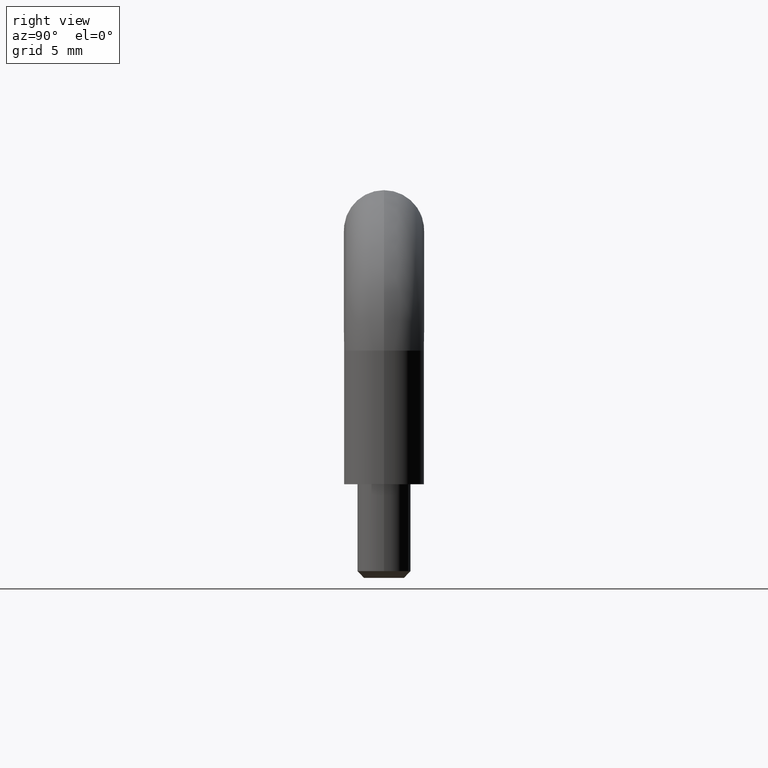
[diagram: clean part render]
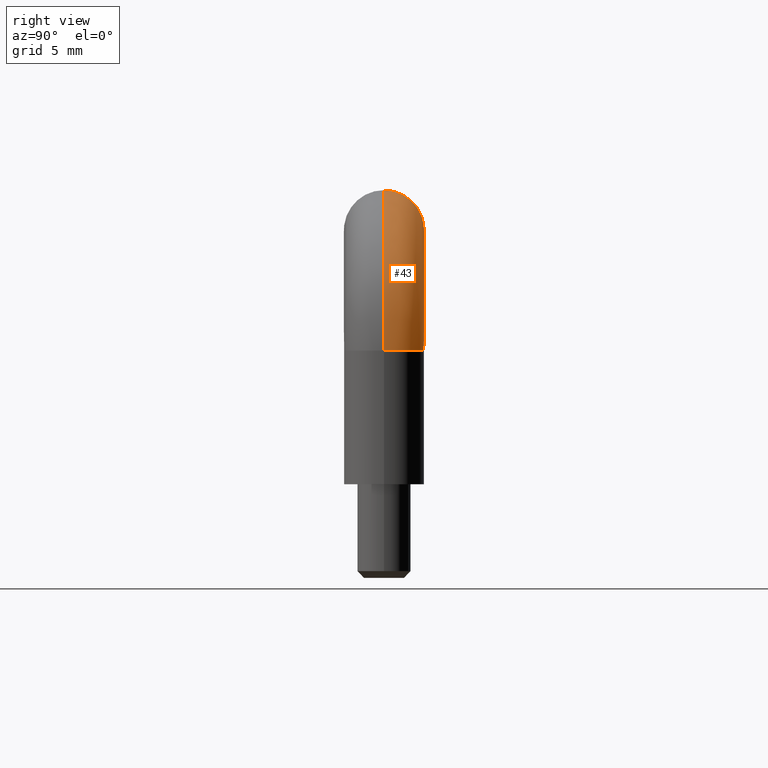
[diagram: same view with one face highlighted and labeled with its STEP entity id]
A machine part, right view. The second image highlights one B-rep face of the part: STEP entity #43.
In plain terms, the highlighted face is a freeform B-spline surface patch.
Its self-contained STEP definition (entity closure, byte-faithful):
#43=ADVANCED_FACE('',(#94),#93,.T.);
#93=( BOUNDED_SURFACE() B_SPLINE_SURFACE( 3,3,((#345,#346,#347,#348,#349,#350,#351),(#352,#353,#354,#355,#356,#357,#358),(#359,#360,#361,#362,#363,#364,#365),(#366,#367,#368,#369,#370,#371,#372),(#373,#374,#375,#376,#377,#378,#379),(#380,#381,#382,#383,#384,#385,#386),(#387,#388,#389,#390,#391,#392,#393)), .UNSPECIFIED.,.F.,.F.,.F.) B_SPLINE_SURFACE_WITH_KNOTS((4,1,1,1,4),(4,1,1,1,4),(0.00000000000E+00,2.50000000000E-01,5.00000000000E-01,7.50000000000E-01,1.00000000000E+00),(0.00000000000E+00,2.49559115838E-01,5.00000000000E-01,7.50440884162E-01,1.00000000000E+00), .UNSPECIFIED. ) GEOMETRIC_REPRESENTATION_ITEM() RATIONAL_B_SPLINE_SURFACE(((1.00000000000E+00,1.00000000000E+00,1.00000000000E+00,1.00000000000E+00,1.00000000000E+00,1.00000000000E+00,1.00000000000E+00),(1.00000000000E+00,1.00000000000E+00,1.00000000000E+00,1.00000000000E+00,1.00000000000E+00,1.00000000000E+00,1.00000000000E+00),(1.00000000000E+00,1.00000000000E+00,1.00000000000E+00,1.00000000000E+00,1.00000000000E+00,1.00000000000E+00,1.00000000000E+00),(1.00000000000E+00,1.00000000000E+00,1.00000000000E+00,1.00000000000E+00,1.00000000000E+00,1.00000000000E+00,1.00000000000E+00),(1.00000000000E+00,1.00000000000E+00,1.00000000000E+00,1.00000000000E+00,1.00000000000E+00,1.00000000000E+00,1.00000000000E+00),(1.00000000000E+00,1.00000000000E+00,1.00000000000E+00,1.00000000000E+00,1.00000000000E+00,1.00000000000E+00,1.00000000000E+00),(1.00000000000E+00,1.00000000000E+00,1.00000000000E+00,1.00000000000E+00,1.00000000000E+00,1.00000000000E+00,1.00000000000E+00))) REPRESENTATION_ITEM('') SURFACE() );
#94=FACE_OUTER_BOUND('',#394,.T.);
#345=CARTESIAN_POINT('',(2.29999999999E+01,0.00000000000E+00,-6.00000000000E+00));
#346=CARTESIAN_POINT('',(2.29999999999E+01,0.00000000000E+00,-4.43197369220E+00));
#347=CARTESIAN_POINT('',(2.23763804224E+01,0.00000000000E+00,-1.29128107198E+00));
#348=CARTESIAN_POINT('',(1.97070376104E+01,0.00000000000E+00,2.70703761052E+00));
#349=CARTESIAN_POINT('',(1.57087189279E+01,0.00000000000E+00,5.37638042249E+00));
#350=CARTESIAN_POINT('',(1.25680263077E+01,0.00000000000E+00,6.00000000000E+00));
#351=CARTESIAN_POINT('',(1.09999999999E+01,0.00000000000E+00,6.00000000000E+00));
#352=CARTESIAN_POINT('',(2.30039136242E+01,7.84902571646E-01,-6.00000000000E+00));
#353=CARTESIAN_POINT('',(2.30039136242E+01,7.84902571646E-01,-4.44468180724E+00));
#354=CARTESIAN_POINT('',(2.23805635009E+01,7.84902571646E-01,-1.28358512468E+00));
#355=CARTESIAN_POINT('',(1.97082160823E+01,7.84902571646E-01,2.70821608236E+00));
#356=CARTESIAN_POINT('',(1.57164148752E+01,7.84902571646E-01,5.38056350100E+00));
#357=CARTESIAN_POINT('',(1.25553181927E+01,7.84902571646E-01,6.00391362429E+00));
#358=CARTESIAN_POINT('',(1.09999999999E+01,7.84902571646E-01,6.00391362429E+00));
#359=CARTESIAN_POINT('',(2.23513091292E+01,2.35139231717E+00,-6.00000000000E+00));
#360=CARTESIAN_POINT('',(2.23513091292E+01,2.35139231717E+00,-4.54678976032E+00));
#361=CARTESIAN_POINT('',(2.17624758332E+01,2.35139231717E+00,-1.53181862990E+00));
#362=CARTESIAN_POINT('',(1.92325798253E+01,2.35139231717E+00,2.23257982536E+00));
#363=CARTESIAN_POINT('',(1.54681813700E+01,2.35139231717E+00,4.76247583335E+00));
#364=CARTESIAN_POINT('',(1.24532102396E+01,2.35139231717E+00,5.35130912930E+00));
#365=CARTESIAN_POINT('',(1.09999999999E+01,2.35139231717E+00,5.35130912930E+00));
#366=CARTESIAN_POINT('',(1.99999999999E+01,3.32731061924E+00,-6.00000000000E+00));
#367=CARTESIAN_POINT('',(1.99999999999E+01,3.32731061924E+00,-4.82398026915E+00));
#368=CARTESIAN_POINT('',(1.95322853168E+01,3.32731061924E+00,-2.46846080399E+00));
#369=CARTESIAN_POINT('',(1.75302782078E+01,3.32731061924E+00,5.30278207890E-01));
#370=CARTESIAN_POINT('',(1.45315391959E+01,3.32731061924E+00,2.53228531687E+00));
#371=CARTESIAN_POINT('',(1.21760197307E+01,3.32731061924E+00,3.00000000000E+00));
#372=CARTESIAN_POINT('',(1.09999999999E+01,3.32731061924E+00,3.00000000000E+00));
#373=CARTESIAN_POINT('',(1.76486908706E+01,2.35139231717E+00,-6.00000000000E+00));
#374=CARTESIAN_POINT('',(1.76486908706E+01,2.35139231717E+00,-5.10117077798E+00));
#375=CARTESIAN_POINT('',(1.73020948003E+01,2.35139231717E+00,-3.40510297808E+00));
#376=CARTESIAN_POINT('',(1.58279765903E+01,2.35139231717E+00,-1.17202340958E+00));
#377=CARTESIAN_POINT('',(1.35948970218E+01,2.35139231717E+00,3.02094800383E-01));
#378=CARTESIAN_POINT('',(1.18988292219E+01,2.35139231717E+00,6.48690870700E-01));
#379=CARTESIAN_POINT('',(1.09999999999E+01,2.35139231717E+00,6.48690870700E-01));
#380=CARTESIAN_POINT('',(1.69960863756E+01,7.84902571646E-01,-6.00000000000E+00));
#381=CARTESIAN_POINT('',(1.69960863756E+01,7.84902571646E-01,-5.20327873106E+00));
#382=CARTESIAN_POINT('',(1.66840071326E+01,7.84902571647E-01,-3.65333648329E+00));
#383=CARTESIAN_POINT('',(1.53523403333E+01,7.84902571647E-01,-1.64765966658E+00));
#384=CARTESIAN_POINT('',(1.33466635166E+01,7.84902571647E-01,-3.15992867272E-01));
#385=CARTESIAN_POINT('',(1.17967212688E+01,7.84902571646E-01,-3.91362428600E-03));
#386=CARTESIAN_POINT('',(1.09999999999E+01,7.84902571646E-01,-3.91362428601E-03));
#387=CARTESIAN_POINT('',(1.69999999999E+01,3.67381906147E-16,-6.00000000000E+00));
#388=CARTESIAN_POINT('',(1.69999999999E+01,3.67381906147E-16,-5.21598684610E+00));
#389=CARTESIAN_POINT('',(1.66881902111E+01,3.67381906147E-16,-3.64564053599E+00));
#390=CARTESIAN_POINT('',(1.53535188052E+01,3.67381906147E-16,-1.64648119474E+00));
#391=CARTESIAN_POINT('',(1.33543594639E+01,3.67381906147E-16,-3.11809788756E-01));
#392=CARTESIAN_POINT('',(1.17840131538E+01,3.67381906147E-16,3.78482820015E-15));
#393=CARTESIAN_POINT('',(1.09999999999E+01,3.67381906147E-16,3.55271367880E-15));
#394=EDGE_LOOP('',(#562,#563,#564,#565));
#562=ORIENTED_EDGE('',*,*,#646,.T.);
#563=ORIENTED_EDGE('',*,*,#643,.T.);
#564=ORIENTED_EDGE('',*,*,#647,.T.);
#565=ORIENTED_EDGE('',*,*,#645,.F.);
#643=EDGE_CURVE('',#728,#721,#729,.T.);
#645=EDGE_CURVE('',#735,#720,#742,.T.);
#646=EDGE_CURVE('',#735,#728,#748,.T.);
#647=EDGE_CURVE('',#721,#720,#754,.T.);
#720=VERTEX_POINT('',#984);
#721=VERTEX_POINT('',#985);
#728=VERTEX_POINT('',#990);
#729=CIRCLE('',#994,6.00000000000E+00);
#735=VERTEX_POINT('',#995);
#742=(BOUNDED_CURVE() B_SPLINE_CURVE(3,(#1000,#1001,#1002,#1003,#1004),.UNSPECIFIED.,.F.,.F.) B_SPLINE_CURVE_WITH_KNOTS((4,1,4),(1.57079632679E+00,2.35619449020E+00,3.14159265360E+00),.UNSPECIFIED.) CURVE() GEOMETRIC_REPRESENTATION_ITEM() RATIONAL_B_SPLINE_CURVE((1.00000000000E+00,1.00000000000E+00,1.00000000000E+00,1.00000000000E+00,1.00000000000E+00)) REPRESENTATION_ITEM('') );
#748=CIRCLE('',#1008,3.00000000000E+00);
#754=CIRCLE('',#1012,3.00000000000E+00);
#984=CARTESIAN_POINT('',(1.09999999999E+01,-1.48029736617E-16,6.00000000000E+00));
#985=CARTESIAN_POINT('',(1.09999999999E+01,0.00000000000E+00,0.00000000000E+00));
#990=CARTESIAN_POINT('',(1.69999999999E+01,-1.48029736617E-16,-6.00000000000E+00));
#991=CARTESIAN_POINT('',(1.09999999999E+01,-3.67381906147E-16,-6.00000000000E+00));
#992=DIRECTION('',(1.64346021921E-32,-1.00000000000E+00,-2.70217232571E-48));
#993=DIRECTION('',(-1.00000000000E+00,-1.64346021921E-32,2.64973228544E-13));
#994=AXIS2_PLACEMENT_3D('',#991,#992,#993);
#995=CARTESIAN_POINT('',(2.29999999999E+01,0.00000000000E+00,-6.00000000000E+00));
#1000=CARTESIAN_POINT('',(2.29999999999E+01,0.00000000000E+00,-6.00000000003E+00));
#1001=CARTESIAN_POINT('',(2.30250591043E+01,0.00000000000E+00,-2.89325030285E+00));
#1002=CARTESIAN_POINT('',(2.04046583475E+01,0.00000000000E+00,3.40465834774E+00));
#1003=CARTESIAN_POINT('',(1.41067496969E+01,0.00000000000E+00,6.02505910444E+00));
#1004=CARTESIAN_POINT('',(1.09999999997E+01,0.00000000000E+00,6.00000000000E+00));
#1005=CARTESIAN_POINT('',(1.99999999999E+01,0.00000000000E+00,-6.00000000000E+00));
#1006=DIRECTION('',(0.00000000000E+00,-0.00000000000E+00,1.00000000000E+00));
#1007=DIRECTION('',(-1.00000000000E+00,-0.00000000000E+00,-0.00000000000E+00));
#1008=AXIS2_PLACEMENT_3D('',#1005,#1006,#1007);
#1009=CARTESIAN_POINT('',(1.09999999999E+01,0.00000000000E+00,3.00000000000E+00));
#1010=DIRECTION('',(1.00000000000E+00,0.00000000000E+00,0.00000000000E+00));
#1011=DIRECTION('',(-0.00000000000E+00,-0.00000000000E+00,1.00000000000E+00));
#1012=AXIS2_PLACEMENT_3D('',#1009,#1010,#1011);